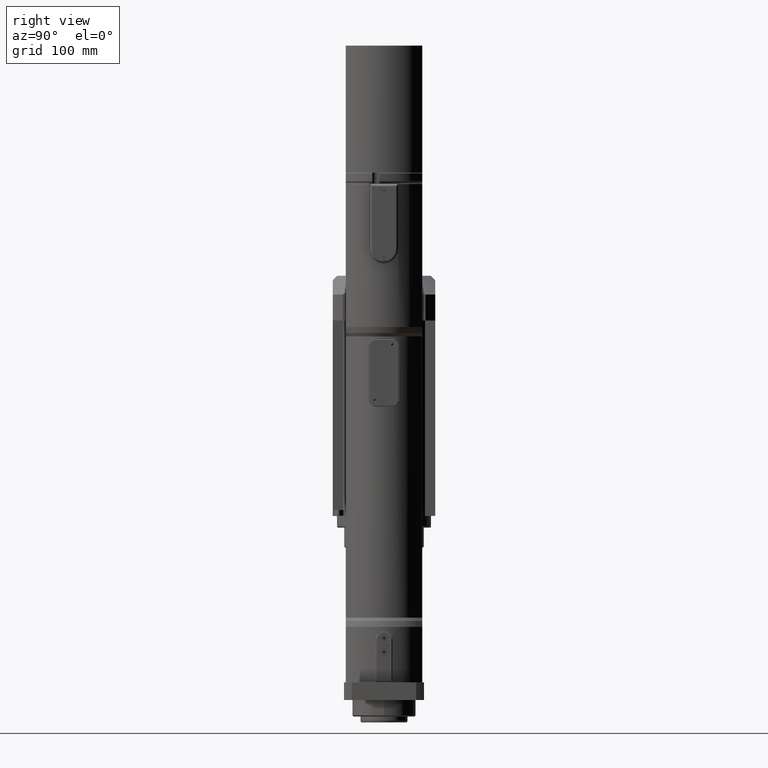
[diagram: clean part render]
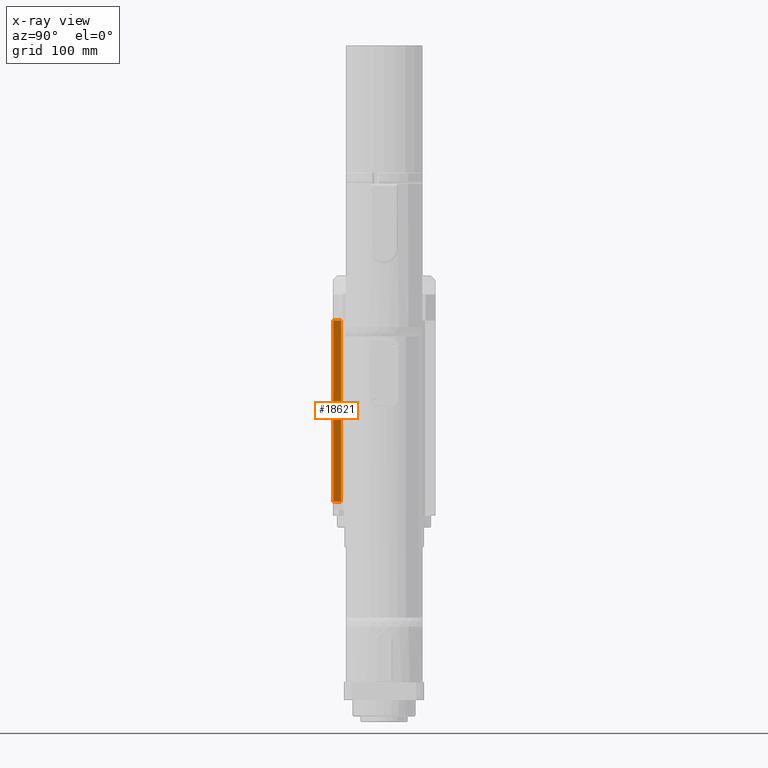
[diagram: x-ray — body ghosted, one internal face saturated and labeled with its STEP entity id]
A machine part, right view, then the same camera in x-ray: the body is ghosted and one INTERNAL B-rep face — a face not visible from any outside direction — is saturated and labeled: STEP entity #18621.
In plain terms, the highlighted planar face has unit normal (1, 0, -0).
Its self-contained STEP definition (entity closure, byte-faithful):
#452=PLANE('',#19779);
#1124=LINE('',#27582,#2741);
#1126=LINE('',#27588,#2743);
#1127=LINE('',#27590,#2744);
#1128=LINE('',#27591,#2745);
#2741=VECTOR('',#22026,10.);
#2743=VECTOR('',#22032,10.);
#2744=VECTOR('',#22033,10.);
#2745=VECTOR('',#22034,10.);
#4632=FACE_OUTER_BOUND('',#5711,.T.);
#5711=EDGE_LOOP('',(#12488,#12489,#12490,#12491));
#7876=VERTEX_POINT('',#27579);
#7877=VERTEX_POINT('',#27581);
#7879=VERTEX_POINT('',#27587);
#7880=VERTEX_POINT('',#27589);
#9666=EDGE_CURVE('',#7876,#7877,#1124,.T.);
#9669=EDGE_CURVE('',#7876,#7879,#1126,.T.);
#9670=EDGE_CURVE('',#7879,#7880,#1127,.T.);
#9671=EDGE_CURVE('',#7877,#7880,#1128,.T.);
#12488=ORIENTED_EDGE('',*,*,#9666,.F.);
#12489=ORIENTED_EDGE('',*,*,#9669,.T.);
#12490=ORIENTED_EDGE('',*,*,#9670,.T.);
#12491=ORIENTED_EDGE('',*,*,#9671,.F.);
#18621=ADVANCED_FACE('',(#4632),#452,.F.);
#19779=AXIS2_PLACEMENT_3D('',#27586,#22030,#22031);
#22026=DIRECTION('',(-9.64765047341266E-16,2.67776092227964E-32,-1.));
#22030=DIRECTION('center_axis',(1.,9.47091042991064E-17,-9.64765047341266E-16));
#22031=DIRECTION('ref_axis',(-9.64765047341266E-16,2.67776092227964E-32,
-1.));
#22032=DIRECTION('',(-9.47091042991064E-17,1.,-2.54036315151869E-48));
#22033=DIRECTION('',(-9.64765047341266E-16,2.67776092227964E-32,-1.));
#22034=DIRECTION('',(-9.47091042991064E-17,1.,-2.54036315151869E-48));
#27579=CARTESIAN_POINT('',(-112.5,-42.8999999999999,322.500000000001));
#27581=CARTESIAN_POINT('',(-112.5,-42.8999999999999,168.500000000001));
#27582=CARTESIAN_POINT('',(-112.5,-42.8999999999999,328.000000000001));
#27586=CARTESIAN_POINT('Origin',(-112.5,-43.4999999999999,322.500000000001));
#27587=CARTESIAN_POINT('',(-112.5,-36.4999999999999,322.500000000001));
#27588=CARTESIAN_POINT('',(-112.5,-43.4999999999999,322.500000000001));
#27589=CARTESIAN_POINT('',(-112.5,-36.4999999999999,168.500000000001));
#27590=CARTESIAN_POINT('',(-112.5,-36.4999999999999,168.500000000001));
#27591=CARTESIAN_POINT('',(-112.5,-43.4999999999999,168.500000000001));